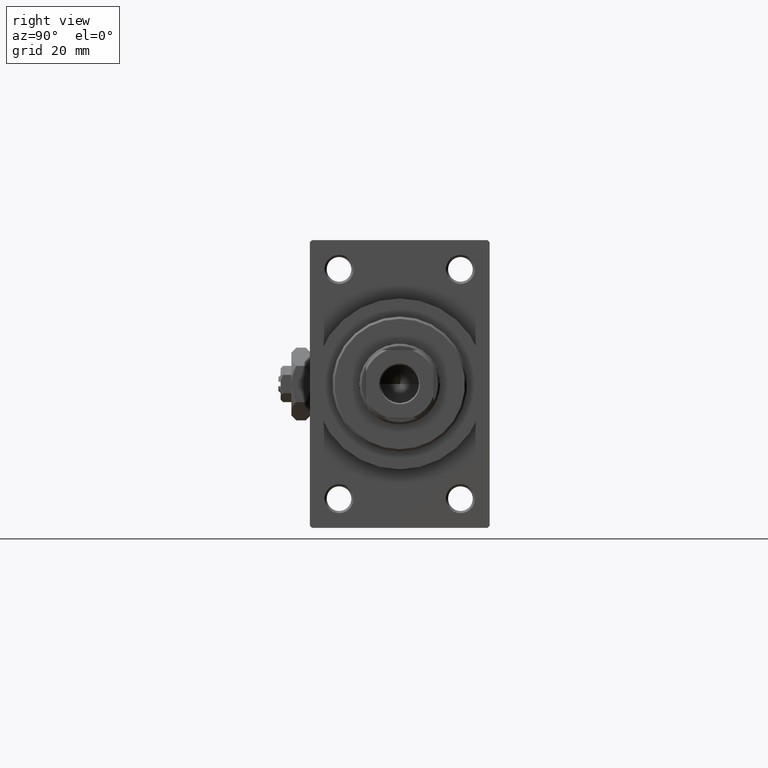
[diagram: clean part render]
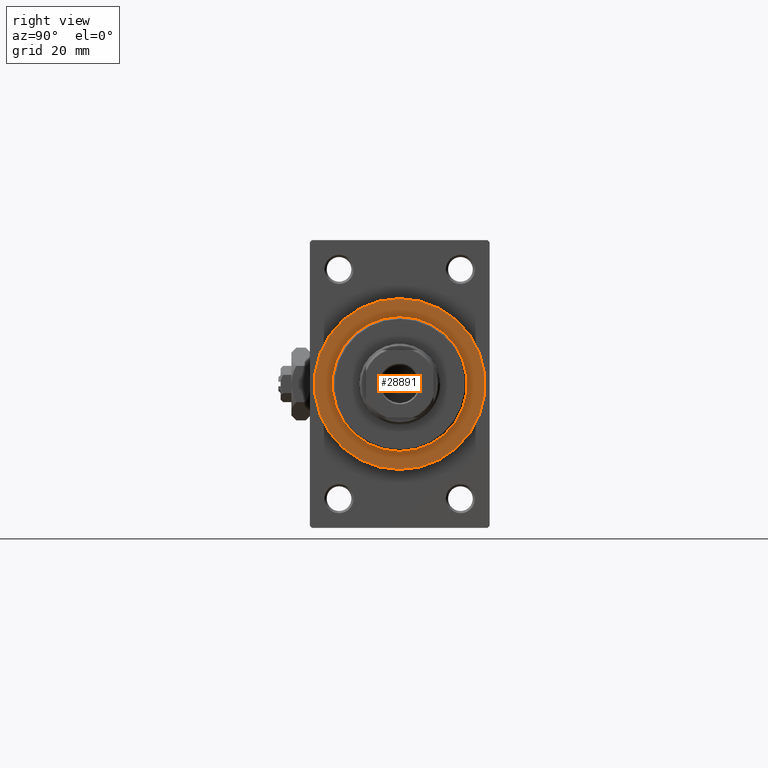
[diagram: same view with one face highlighted and labeled with its STEP entity id]
A machine part, right view. The second image highlights one B-rep face of the part: STEP entity #28891.
In plain terms, the highlighted planar face has unit normal (1, 0, 0).
Its self-contained STEP definition (entity closure, byte-faithful):
#27 = ORIENTED_EDGE ( 'NONE', *, *, #48208, .F. ) ;
#897 = CARTESIAN_POINT ( 'NONE',  ( 119.0000000000000142, 0.000000000000000000, 19.00000000000000000 ) ) ;
#1814 = EDGE_LOOP ( 'NONE', ( #47304, #18377 ) ) ;
#2302 = FACE_BOUND ( 'NONE', #12601, .T. ) ;
#2438 = DIRECTION ( 'NONE',  ( 0.000000000000000000, 0.000000000000000000, -1.000000000000000000 ) ) ;
#3012 = EDGE_CURVE ( 'NONE', #8621, #11444, #41604, .T. ) ;
#3226 = VERTEX_POINT ( 'NONE', #42936 ) ;
#8621 = VERTEX_POINT ( 'NONE', #897 ) ;
#9054 = CIRCLE ( 'NONE', #30292, 15.00000000000000000 ) ;
#9926 = FACE_OUTER_BOUND ( 'NONE', #1814, .T. ) ;
#10169 = DIRECTION ( 'NONE',  ( 0.000000000000000000, 0.000000000000000000, -1.000000000000000000 ) ) ;
#11444 = VERTEX_POINT ( 'NONE', #48597 ) ;
#12601 = EDGE_LOOP ( 'NONE', ( #15170, #27 ) ) ;
#14404 = DIRECTION ( 'NONE',  ( 0.000000000000000000, 0.000000000000000000, -1.000000000000000000 ) ) ;
#15170 = ORIENTED_EDGE ( 'NONE', *, *, #37951, .F. ) ;
#17465 = CARTESIAN_POINT ( 'NONE',  ( 119.0000000000000142, 0.000000000000000000, 0.000000000000000000 ) ) ;
#17957 = DIRECTION ( 'NONE',  ( 1.000000000000000000, 0.000000000000000000, 0.000000000000000000 ) ) ;
#18377 = ORIENTED_EDGE ( 'NONE', *, *, #48126, .T. ) ;
#18773 = DIRECTION ( 'NONE',  ( 0.000000000000000000, 0.000000000000000000, -1.000000000000000000 ) ) ;
#19719 = DIRECTION ( 'NONE',  ( 1.000000000000000000, 0.000000000000000000, 0.000000000000000000 ) ) ;
#20598 = CARTESIAN_POINT ( 'NONE',  ( 119.0000000000000142, 1.836970198721029589E-15, 15.00000000000000000 ) ) ;
#21259 = CARTESIAN_POINT ( 'NONE',  ( 119.0000000000000142, 0.000000000000000000, 0.000000000000000000 ) ) ;
#24767 = CIRCLE ( 'NONE', #47588, 19.00000000000000000 ) ;
#25480 = CARTESIAN_POINT ( 'NONE',  ( 119.0000000000000142, 0.000000000000000000, 0.000000000000000000 ) ) ;
#27311 = CARTESIAN_POINT ( 'NONE',  ( 119.0000000000000142, 0.000000000000000000, 0.000000000000000000 ) ) ;
#27558 = DIRECTION ( 'NONE',  ( 0.000000000000000000, 0.000000000000000000, -1.000000000000000000 ) ) ;
#27695 = AXIS2_PLACEMENT_3D ( 'NONE', #38430, #19719, #18773 ) ;
#28891 = ADVANCED_FACE ( 'NONE', ( #2302, #9926 ), #39975, .T. ) ;
#30057 = AXIS2_PLACEMENT_3D ( 'NONE', #21259, #43906, #10169 ) ;
#30292 = AXIS2_PLACEMENT_3D ( 'NONE', #17465, #17957, #2438 ) ;
#32519 = VERTEX_POINT ( 'NONE', #20598 ) ;
#33734 = AXIS2_PLACEMENT_3D ( 'NONE', #25480, #47895, #14404 ) ;
#35688 = DIRECTION ( 'NONE',  ( 1.000000000000000000, 0.000000000000000000, 0.000000000000000000 ) ) ;
#37951 = EDGE_CURVE ( 'NONE', #3226, #32519, #46584, .T. ) ;
#38430 = CARTESIAN_POINT ( 'NONE',  ( 119.0000000000000142, 0.000000000000000000, 0.000000000000000000 ) ) ;
#39975 = PLANE ( 'NONE',  #30057 ) ;
#41604 = CIRCLE ( 'NONE', #33734, 19.00000000000000000 ) ;
#42936 = CARTESIAN_POINT ( 'NONE',  ( 119.0000000000000142, 0.000000000000000000, -15.00000000000000000 ) ) ;
#43906 = DIRECTION ( 'NONE',  ( 1.000000000000000000, 0.000000000000000000, 0.000000000000000000 ) ) ;
#46584 = CIRCLE ( 'NONE', #27695, 15.00000000000000000 ) ;
#47304 = ORIENTED_EDGE ( 'NONE', *, *, #3012, .T. ) ;
#47588 = AXIS2_PLACEMENT_3D ( 'NONE', #27311, #35688, #27558 ) ;
#47895 = DIRECTION ( 'NONE',  ( 1.000000000000000000, 0.000000000000000000, 0.000000000000000000 ) ) ;
#48126 = EDGE_CURVE ( 'NONE', #11444, #8621, #24767, .T. ) ;
#48208 = EDGE_CURVE ( 'NONE', #32519, #3226, #9054, .T. ) ;
#48597 = CARTESIAN_POINT ( 'NONE',  ( 119.0000000000000142, 2.326828918379970970E-15, -19.00000000000000000 ) ) ;